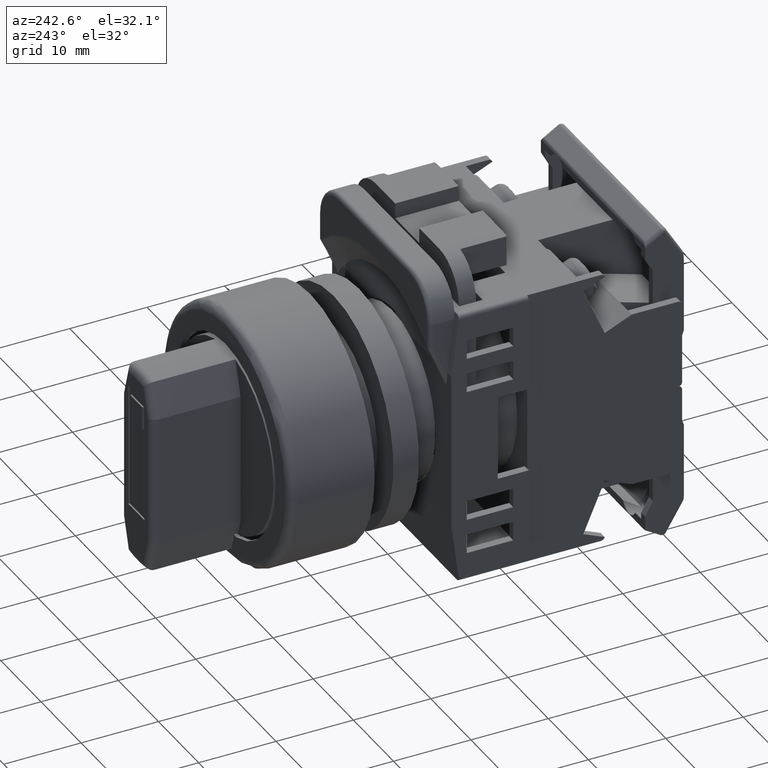
[diagram: clean part render]
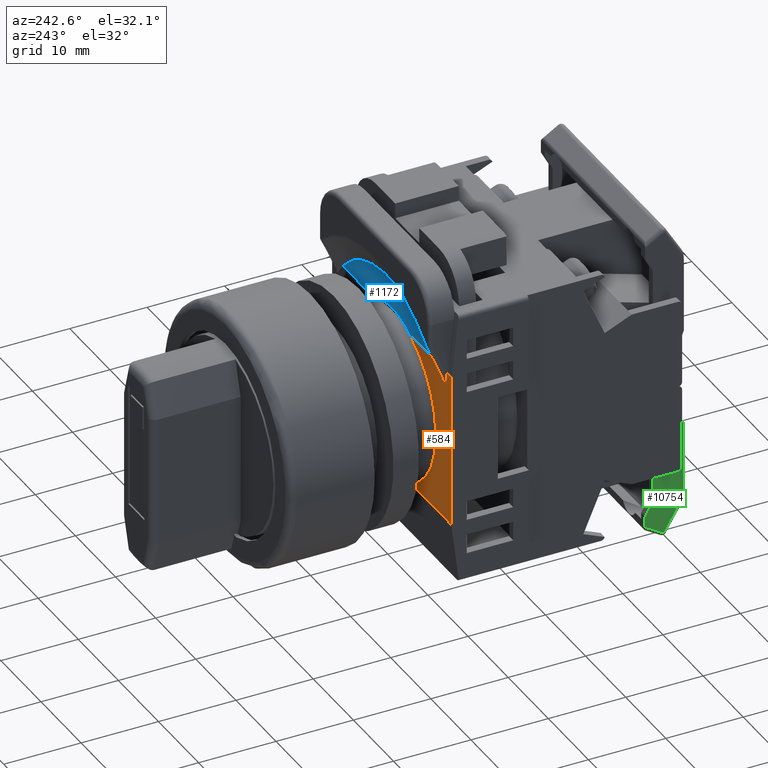
[diagram: same view with three faces highlighted in distinct colors, each labeled with its STEP entity id]
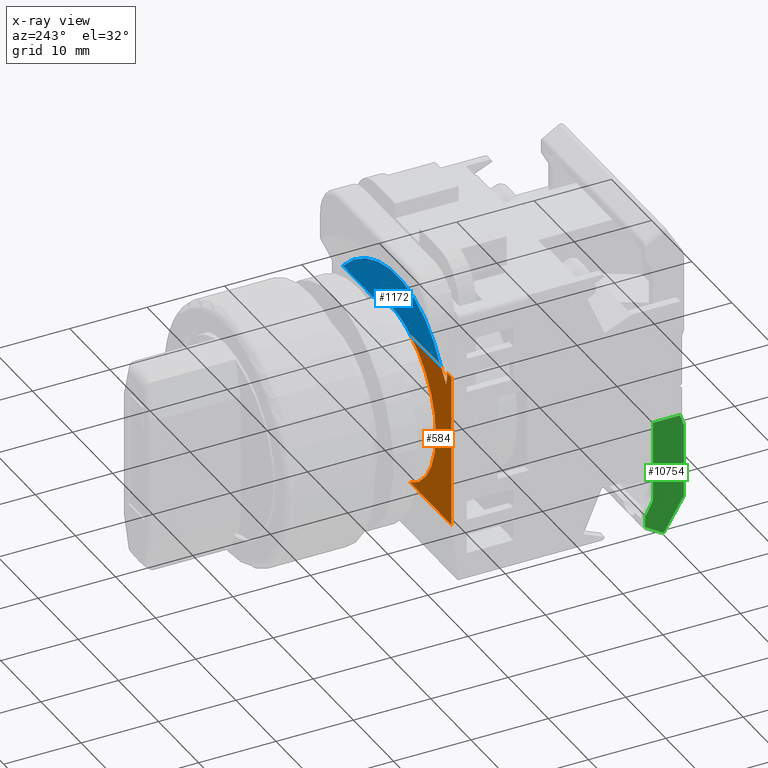
[diagram: x-ray of the same camera — body ghosted, the three highlighted faces saturated]
A machine part, auxiliary view with three faces highlighted in distinct colors.
The next image is the same camera in x-ray (body ghosted, the three faces saturated) — at least one of them is partly hidden behind the body in this view.
Their STEP definitions:

[orange] entity #584 — the highlighted planar face has unit normal (0, -1, 0).
#93 = VERTEX_POINT ( 'NONE', #4858 ) ;
#151 = VERTEX_POINT ( 'NONE', #5052 ) ;
#228 = EDGE_CURVE ( 'NONE', #7400, #9256, #6697, .T. ) ;
#419 = DIRECTION ( 'NONE',  ( 0.0000000000000000000, 1.000000000000000000, 0.0000000000000000000 ) ) ;
#488 = EDGE_CURVE ( 'NONE', #151, #93, #2497, .T. ) ;
#584 = ADVANCED_FACE ( 'NONE', ( #14210 ), #5847, .F. ) ;
#706 = VERTEX_POINT ( 'NONE', #2409 ) ;
#809 = LINE ( 'NONE', #8277, #10683 ) ;
#918 = ORIENTED_EDGE ( 'NONE', *, *, #12319, .T. ) ;
#1758 = EDGE_CURVE ( 'NONE', #151, #5713, #14818, .T. ) ;
#1983 = AXIS2_PLACEMENT_3D ( 'NONE', #8450, #419, #9780 ) ;
#2110 = CARTESIAN_POINT ( 'NONE',  ( -14.85000000000000000, -10.50000000000000000, 10.00000000000000000 ) ) ;
#2409 = CARTESIAN_POINT ( 'NONE',  ( -14.85000000000000000, -10.50000000000000000, -10.00000000000000000 ) ) ;
#2496 = ORIENTED_EDGE ( 'NONE', *, *, #228, .T. ) ;
#2497 = LINE ( 'NONE', #14978, #16300 ) ;
#2514 = VECTOR ( 'NONE', #14181, 1000.000000000000000 ) ;
#2630 = CARTESIAN_POINT ( 'NONE',  ( -14.85000000000000000, -10.50000000000000000, 10.00000000000000000 ) ) ;
#2839 = CARTESIAN_POINT ( 'NONE',  ( -13.80000000000000100, -10.50000000000000200, 9.525480374085647700 ) ) ;
#2916 = LINE ( 'NONE', #2110, #2514 ) ;
#3142 = CARTESIAN_POINT ( 'NONE',  ( 14.85000000000000000, -10.50000000000000000, 10.00000000000000000 ) ) ;
#4061 = EDGE_LOOP ( 'NONE', ( #15603, #13423, #12171, #2496, #15980, #918, #16176, #16157 ) ) ;
#4217 = CARTESIAN_POINT ( 'NONE',  ( -13.79999999999994200, -10.50000000000000500, 9.319954440554726100 ) ) ;
#4261 = CARTESIAN_POINT ( 'NONE',  ( -13.54853451232076500, -10.50000000000000200, 8.337695364723728600 ) ) ;
#4643 = B_SPLINE_CURVE_WITH_KNOTS ( 'NONE', 3,
 ( #2839, #4217, #13547, #5553, #14921, #6882, #16245, #8244 ),
 .UNSPECIFIED., .F., .F.,
 ( 4, 2, 2, 4 ),
 ( 0.0000000000000000000, 0.0006088593145239035600, 0.0009132889717858552900, 0.001217718629047807100 ),
 .UNSPECIFIED. ) ;
#4858 = CARTESIAN_POINT ( 'NONE',  ( -13.80000000000000100, -10.50000000000000200, 9.525480374085647700 ) ) ;
#5052 = CARTESIAN_POINT ( 'NONE',  ( -13.80000000000000100, -10.50000000000000000, 10.00000000000000000 ) ) ;
#5322 = VERTEX_POINT ( 'NONE', #9081 ) ;
#5478 = VERTEX_POINT ( 'NONE', #10164 ) ;
#5523 = EDGE_CURVE ( 'NONE', #5478, #7400, #7912, .T. ) ;
#5553 = CARTESIAN_POINT ( 'NONE',  ( -13.72866399005898200, -10.50000000000000000, 8.817534320932630000 ) ) ;
#5713 = VERTEX_POINT ( 'NONE', #2630 ) ;
#5847 = PLANE ( 'NONE',  #11404 ) ;
#6697 = LINE ( 'NONE', #9143, #13397 ) ;
#6882 = CARTESIAN_POINT ( 'NONE',  ( -13.64252078450904500, -10.50000000000000000, 8.523005332478463800 ) ) ;
#6930 = CARTESIAN_POINT ( 'NONE',  ( -12.21689404063083000, -10.50000000000000000, 9.999999999999955600 ) ) ;
#7039 = EDGE_CURVE ( 'NONE', #706, #5713, #2916, .T. ) ;
#7187 = DIRECTION ( 'NONE',  ( 0.0000000000000000000, -1.000000000000000000, 0.0000000000000000000 ) ) ;
#7362 = CIRCLE ( 'NONE', #1983, 11.00000000000000000 ) ;
#7400 = VERTEX_POINT ( 'NONE', #14367 ) ;
#7826 = DIRECTION ( 'NONE',  ( 1.000000000000000000, 0.0000000000000000000, -0.0000000000000000000 ) ) ;
#7912 =( BOUNDED_CURVE ( )  B_SPLINE_CURVE ( 3, ( #4261, #12251, #14963, #6930 ),
 .UNSPECIFIED., .F., .F. ) 
 B_SPLINE_CURVE_WITH_KNOTS ( ( 4, 4 ),
 ( 5.327643031488809900, 5.455505857335010600 ),
 .UNSPECIFIED. ) 
 CURVE ( )  GEOMETRIC_REPRESENTATION_ITEM ( )  RATIONAL_B_SPLINE_CURVE ( ( 1.000000000000000000, 0.9986380554565790200, 0.9986380554565790200, 1.000000000000000000 ) ) 
 REPRESENTATION_ITEM ( '' )  );
#8233 = DIRECTION ( 'NONE',  ( -1.000000000000000000, -0.0000000000000000000, -0.0000000000000000000 ) ) ;
#8244 = CARTESIAN_POINT ( 'NONE',  ( -13.54853451232076500, -10.50000000000000200, 8.337695364723728600 ) ) ;
#8277 = CARTESIAN_POINT ( 'NONE',  ( 14.85000000000000000, -10.50000000000000000, -10.00000000000000000 ) ) ;
#8450 = CARTESIAN_POINT ( 'NONE',  ( 0.0000000000000000000, -10.50000000000000000, 0.0000000000000000000 ) ) ;
#9081 = CARTESIAN_POINT ( 'NONE',  ( -4.582575694955838100, -10.50000000000000000, -10.00000000000000000 ) ) ;
#9143 = CARTESIAN_POINT ( 'NONE',  ( 0.0000000000000000000, -10.50000000000000000, 9.999999999999953800 ) ) ;
#9256 = VERTEX_POINT ( 'NONE', #14312 ) ;
#9780 = DIRECTION ( 'NONE',  ( 0.0000000000000000000, 0.0000000000000000000, 1.000000000000000000 ) ) ;
#10162 = CARTESIAN_POINT ( 'NONE',  ( 14.85000000000000000, -10.50000000000000000, 10.00000000000000000 ) ) ;
#10164 = CARTESIAN_POINT ( 'NONE',  ( -13.54853451232076500, -10.50000000000000200, 8.337695364723728600 ) ) ;
#10683 = VECTOR ( 'NONE', #8233, 1000.000000000000000 ) ;
#11238 = VECTOR ( 'NONE', #12853, 1000.000000000000000 ) ;
#11404 = AXIS2_PLACEMENT_3D ( 'NONE', #3142, #7187, #16552 ) ;
#11693 = EDGE_CURVE ( 'NONE', #93, #5478, #4643, .T. ) ;
#12171 = ORIENTED_EDGE ( 'NONE', *, *, #5523, .T. ) ;
#12251 = CARTESIAN_POINT ( 'NONE',  ( -13.14013194596774000, -10.50000000000000200, 8.920037294799074700 ) ) ;
#12319 = EDGE_CURVE ( 'NONE', #5322, #706, #809, .T. ) ;
#12853 = DIRECTION ( 'NONE',  ( -1.000000000000000000, -0.0000000000000000000, -0.0000000000000000000 ) ) ;
#13397 = VECTOR ( 'NONE', #7826, 1000.000000000000000 ) ;
#13423 = ORIENTED_EDGE ( 'NONE', *, *, #11693, .T. ) ;
#13547 = CARTESIAN_POINT ( 'NONE',  ( -13.78351834682081600, -10.50000000000000000, 9.117061170776102200 ) ) ;
#14181 = DIRECTION ( 'NONE',  ( -0.0000000000000000000, -0.0000000000000000000, 1.000000000000000000 ) ) ;
#14210 = FACE_OUTER_BOUND ( 'NONE', #4061, .T. ) ;
#14312 = CARTESIAN_POINT ( 'NONE',  ( -4.582575694955940200, -10.50000000000000000, 9.999999999999953800 ) ) ;
#14367 = CARTESIAN_POINT ( 'NONE',  ( -12.21689404063083000, -10.50000000000000000, 9.999999999999955600 ) ) ;
#14818 = LINE ( 'NONE', #10162, #11238 ) ;
#14921 = CARTESIAN_POINT ( 'NONE',  ( -13.70530151279067400, -10.50000000000000000, 8.718503112529017300 ) ) ;
#14963 = CARTESIAN_POINT ( 'NONE',  ( -12.69564642410663100, -10.50000000000000200, 9.474894524667751800 ) ) ;
#14978 = CARTESIAN_POINT ( 'NONE',  ( -13.80000000000000100, -10.50000000000000200, 6.534950688428415900 ) ) ;
#15468 = EDGE_CURVE ( 'NONE', #5322, #9256, #7362, .T. ) ;
#15603 = ORIENTED_EDGE ( 'NONE', *, *, #488, .T. ) ;
#15980 = ORIENTED_EDGE ( 'NONE', *, *, #15468, .F. ) ;
#16157 = ORIENTED_EDGE ( 'NONE', *, *, #1758, .F. ) ;
#16176 = ORIENTED_EDGE ( 'NONE', *, *, #7039, .T. ) ;
#16245 = CARTESIAN_POINT ( 'NONE',  ( -13.60368212947631700, -10.50000000000000000, 8.425869327908721100 ) ) ;
#16300 = VECTOR ( 'NONE', #16305, 1000.000000000000000 ) ;
#16305 = DIRECTION ( 'NONE',  ( 0.0000000000000000000, 0.0000000000000000000, -1.000000000000000000 ) ) ;
#16552 = DIRECTION ( 'NONE',  ( 0.0000000000000000000, -0.0000000000000000000, -1.000000000000000000 ) ) ;

[blue] entity #1172 — the highlighted planar face has unit normal (0, 0.9923, 0.124).
#228 = EDGE_CURVE ( 'NONE', #7400, #9256, #6697, .T. ) ;
#1129 = CARTESIAN_POINT ( 'NONE',  ( -1.587809417128124300, -10.62500000000000000, 11.00000000000000400 ) ) ;
#1172 = ADVANCED_FACE ( 'NONE', ( #6684 ), #2014, .T. ) ;
#1796 = ORIENTED_EDGE ( 'NONE', *, *, #3571, .T. ) ;
#1954 = ORIENTED_EDGE ( 'NONE', *, *, #7733, .T. ) ;
#2014 = PLANE ( 'NONE',  #8627 ) ;
#2193 = ORIENTED_EDGE ( 'NONE', *, *, #2601, .F. ) ;
#2601 = EDGE_CURVE ( 'NONE', #15752, #13619, #13315, .T. ) ;
#2993 = AXIS2_PLACEMENT_3D ( 'NONE', #3793, #13144, #5138 ) ;
#3392 = DIRECTION ( 'NONE',  ( 0.0000000000000000000, -0.1240347345892090800, 0.9922778767136675200 ) ) ;
#3571 = EDGE_CURVE ( 'NONE', #7400, #13619, #12648, .T. ) ;
#3793 = CARTESIAN_POINT ( 'NONE',  ( 0.0000000000000000000, -9.107692307692305500, -1.138461538461544200 ) ) ;
#3848 = CARTESIAN_POINT ( 'NONE',  ( -3.139112588475828000, -10.58268473685401300, 10.66147789483209400 ) ) ;
#4746 = CARTESIAN_POINT ( 'NONE',  ( 0.0000000000000000000, -10.62500000000000200, 11.00000000000000000 ) ) ;
#5138 = DIRECTION ( 'NONE',  ( 0.0000000000000000000, -0.1240347345892091300, 0.9922778767136675200 ) ) ;
#6127 = EDGE_LOOP ( 'NONE', ( #1954, #13066, #10899, #1796, #2193 ) ) ;
#6167 = VECTOR ( 'NONE', #17097, 1000.000000000000000 ) ;
#6684 = FACE_OUTER_BOUND ( 'NONE', #6127, .T. ) ;
#6697 = LINE ( 'NONE', #9143, #13397 ) ;
#7400 = VERTEX_POINT ( 'NONE', #14367 ) ;
#7733 = EDGE_CURVE ( 'NONE', #15752, #9316, #14430, .T. ) ;
#7826 = DIRECTION ( 'NONE',  ( 1.000000000000000000, 0.0000000000000000000, -0.0000000000000000000 ) ) ;
#7987 = CARTESIAN_POINT ( 'NONE',  ( 12.21689404063083000, -10.50000000000000000, 9.999999999999955600 ) ) ;
#8374 = CARTESIAN_POINT ( 'NONE',  ( 0.0000000000000000000, -10.62500000000000200, 11.00000000000000000 ) ) ;
#8500 =( BOUNDED_CURVE ( )  B_SPLINE_CURVE ( 3, ( #10513, #1129, #3848, #13196 ),
 .UNSPECIFIED., .F., .F. ) 
 B_SPLINE_CURVE_WITH_KNOTS ( ( 4, 4 ),
 ( 3.141592653589793100, 3.571292319741227400 ),
 .UNSPECIFIED. ) 
 CURVE ( )  GEOMETRIC_REPRESENTATION_ITEM ( )  RATIONAL_B_SPLINE_CURVE ( ( 1.000000000000000000, 0.9846722806122622000, 0.9846722806122622000, 1.000000000000000000 ) ) 
 REPRESENTATION_ITEM ( '' )  );
#8627 = AXIS2_PLACEMENT_3D ( 'NONE', #8701, #11394, #3392 ) ;
#8701 = CARTESIAN_POINT ( 'NONE',  ( 0.0000000000000000000, -9.107692307692305500, -1.138461538461544200 ) ) ;
#9143 = CARTESIAN_POINT ( 'NONE',  ( 0.0000000000000000000, -10.50000000000000000, 9.999999999999953800 ) ) ;
#9256 = VERTEX_POINT ( 'NONE', #14312 ) ;
#9316 = VERTEX_POINT ( 'NONE', #8374 ) ;
#10191 = EDGE_CURVE ( 'NONE', #9316, #9256, #8500, .T. ) ;
#10513 = CARTESIAN_POINT ( 'NONE',  ( 0.0000000000000000000, -10.62500000000000200, 11.00000000000000000 ) ) ;
#10899 = ORIENTED_EDGE ( 'NONE', *, *, #228, .F. ) ;
#11394 = DIRECTION ( 'NONE',  ( 0.0000000000000000000, 0.9922778767136676300, 0.1240347345892090900 ) ) ;
#11416 = CARTESIAN_POINT ( 'NONE',  ( 1.587809417128127000, -10.62500000000000000, 11.00000000000000400 ) ) ;
#12648 = CIRCLE ( 'NONE', #2993, 16.59085127875740900 ) ;
#12763 = CARTESIAN_POINT ( 'NONE',  ( 4.582575694955940200, -10.50000000000000000, 9.999999999999953800 ) ) ;
#13066 = ORIENTED_EDGE ( 'NONE', *, *, #10191, .T. ) ;
#13144 = DIRECTION ( 'NONE',  ( 0.0000000000000000000, 0.9922778767136676300, 0.1240347345892090900 ) ) ;
#13196 = CARTESIAN_POINT ( 'NONE',  ( -4.582575694955940200, -10.50000000000000000, 9.999999999999953800 ) ) ;
#13315 = LINE ( 'NONE', #17035, #6167 ) ;
#13397 = VECTOR ( 'NONE', #7826, 1000.000000000000000 ) ;
#13619 = VERTEX_POINT ( 'NONE', #7987 ) ;
#14312 = CARTESIAN_POINT ( 'NONE',  ( -4.582575694955940200, -10.50000000000000000, 9.999999999999953800 ) ) ;
#14367 = CARTESIAN_POINT ( 'NONE',  ( -12.21689404063083000, -10.50000000000000000, 9.999999999999955600 ) ) ;
#14430 =( BOUNDED_CURVE ( )  B_SPLINE_CURVE ( 3, ( #12763, #16738, #11416, #4746 ),
 .UNSPECIFIED., .F., .F. ) 
 B_SPLINE_CURVE_WITH_KNOTS ( ( 4, 4 ),
 ( 2.711892987438358800, 3.141592653589793100 ),
 .UNSPECIFIED. ) 
 CURVE ( )  GEOMETRIC_REPRESENTATION_ITEM ( )  RATIONAL_B_SPLINE_CURVE ( ( 1.000000000000000000, 0.9846722806122622000, 0.9846722806122622000, 1.000000000000000000 ) ) 
 REPRESENTATION_ITEM ( '' )  );
#15752 = VERTEX_POINT ( 'NONE', #17153 ) ;
#16738 = CARTESIAN_POINT ( 'NONE',  ( 3.139112588475831100, -10.58268473685401300, 10.66147789483209600 ) ) ;
#17035 = CARTESIAN_POINT ( 'NONE',  ( 0.0000000000000000000, -10.50000000000000000, 9.999999999999953800 ) ) ;
#17097 = DIRECTION ( 'NONE',  ( 1.000000000000000000, 0.0000000000000000000, -0.0000000000000000000 ) ) ;
#17153 = CARTESIAN_POINT ( 'NONE',  ( 4.582575694955940200, -10.50000000000000000, 9.999999999999953800 ) ) ;

[green] entity #10754 — the highlighted planar face has unit normal (1, 0, -0).
#12 = LINE ( 'NONE', #14304, #10256 ) ;
#549 = CARTESIAN_POINT ( 'NONE',  ( -13.00000000000000000, -41.49999999999998600, -16.03941769519668600 ) ) ;
#1290 = VERTEX_POINT ( 'NONE', #8046 ) ;
#1392 = CARTESIAN_POINT ( 'NONE',  ( -13.00000000000000000, -41.00000000000000700, -4.999999999999998200 ) ) ;
#2049 = CARTESIAN_POINT ( 'NONE',  ( -13.00000000000000000, -41.50000000000000700, -6.373738709727303900 ) ) ;
#2336 = EDGE_LOOP ( 'NONE', ( #6509, #14190, #7134, #9488, #10512, #6203, #7847, #8028 ) ) ;
#2591 = DIRECTION ( 'NONE',  ( 0.0000000000000000000, 1.000000000000000000, -2.478176394252579700E-016 ) ) ;
#3090 = CARTESIAN_POINT ( 'NONE',  ( -13.00000000000000000, -37.50000000000000700, -15.60000000000000000 ) ) ;
#3427 = CARTESIAN_POINT ( 'NONE',  ( -13.00000000000000000, -41.50000000000000700, -6.373738709727303900 ) ) ;
#3762 = LINE ( 'NONE', #7549, #10449 ) ;
#3786 = FACE_OUTER_BOUND ( 'NONE', #2336, .T. ) ;
#4187 = VECTOR ( 'NONE', #11432, 1000.000000000000000 ) ;
#4189 = VERTEX_POINT ( 'NONE', #1392 ) ;
#5410 = VECTOR ( 'NONE', #11436, 1000.000000000000000 ) ;
#5820 = LINE ( 'NONE', #3427, #5410 ) ;
#6140 = EDGE_CURVE ( 'NONE', #9584, #6769, #6605, .T. ) ;
#6203 = ORIENTED_EDGE ( 'NONE', *, *, #11199, .T. ) ;
#6255 = VERTEX_POINT ( 'NONE', #7169 ) ;
#6283 = DIRECTION ( 'NONE',  ( -0.0000000000000000000, 0.5205176042696088000, -0.8538509376029442800 ) ) ;
#6509 = ORIENTED_EDGE ( 'NONE', *, *, #16546, .T. ) ;
#6605 = LINE ( 'NONE', #9178, #8451 ) ;
#6769 = VERTEX_POINT ( 'NONE', #3090 ) ;
#6917 = VECTOR ( 'NONE', #2591, 1000.000000000000000 ) ;
#7134 = ORIENTED_EDGE ( 'NONE', *, *, #10224, .T. ) ;
#7169 = CARTESIAN_POINT ( 'NONE',  ( -13.00000000000000000, -38.89488614614215600, -20.31281572906372500 ) ) ;
#7506 = CARTESIAN_POINT ( 'NONE',  ( -13.00000000000000000, 0.0000000000000000000, 0.0000000000000000000 ) ) ;
#7549 = CARTESIAN_POINT ( 'NONE',  ( -13.00000000000000000, -1.510206978102853800, 2.477325711273589800 ) ) ;
#7847 = ORIENTED_EDGE ( 'NONE', *, *, #8187, .F. ) ;
#7863 = DIRECTION ( 'NONE',  ( 0.0000000000000000000, 0.0000000000000000000, -1.000000000000000000 ) ) ;
#8028 = ORIENTED_EDGE ( 'NONE', *, *, #13458, .F. ) ;
#8046 = CARTESIAN_POINT ( 'NONE',  ( -13.00000000000000000, -36.49999999999998600, -17.43844718719117600 ) ) ;
#8187 = EDGE_CURVE ( 'NONE', #6255, #15125, #3762, .T. ) ;
#8451 = VECTOR ( 'NONE', #7863, 1000.000000000000000 ) ;
#8514 = EDGE_CURVE ( 'NONE', #8870, #4189, #5820, .T. ) ;
#8858 = DIRECTION ( 'NONE',  ( 0.0000000000000000000, 0.0000000000000000000, 1.000000000000000000 ) ) ;
#8870 = VERTEX_POINT ( 'NONE', #11254 ) ;
#8886 = DIRECTION ( 'NONE',  ( -0.0000000000000000000, 0.8538509376029447300, 0.5205176042696079100 ) ) ;
#9059 = CARTESIAN_POINT ( 'NONE',  ( -13.00000000000000000, -36.49999999999998600, -17.43844718719117600 ) ) ;
#9178 = CARTESIAN_POINT ( 'NONE',  ( -13.00000000000000000, -37.50000000000000700, -15.60000000000000000 ) ) ;
#9211 = VECTOR ( 'NONE', #10392, 1000.000000000000000 ) ;
#9488 = ORIENTED_EDGE ( 'NONE', *, *, #6140, .T. ) ;
#9534 = AXIS2_PLACEMENT_3D ( 'NONE', #7506, #16847, #8858 ) ;
#9584 = VERTEX_POINT ( 'NONE', #15767 ) ;
#9608 = LINE ( 'NONE', #9059, #9211 ) ;
#9774 = VECTOR ( 'NONE', #12342, 1000.000000000000000 ) ;
#10054 = LINE ( 'NONE', #10622, #6917 ) ;
#10144 = PLANE ( 'NONE',  #9534 ) ;
#10224 = EDGE_CURVE ( 'NONE', #4189, #9584, #10054, .T. ) ;
#10256 = VECTOR ( 'NONE', #6283, 1000.000000000000100 ) ;
#10392 = DIRECTION ( 'NONE',  ( 0.0000000000000000000, 0.4778245885015954800, -0.8784552707015201900 ) ) ;
#10449 = VECTOR ( 'NONE', #8886, 1000.000000000000100 ) ;
#10512 = ORIENTED_EDGE ( 'NONE', *, *, #16693, .T. ) ;
#10622 = CARTESIAN_POINT ( 'NONE',  ( -13.00000000000000000, -41.00000000000000700, -4.999999999999998200 ) ) ;
#10754 = ADVANCED_FACE ( 'NONE', ( #3786 ), #10144, .F. ) ;
#11199 = EDGE_CURVE ( 'NONE', #1290, #15125, #17314, .T. ) ;
#11254 = CARTESIAN_POINT ( 'NONE',  ( -13.00000000000000000, -41.50000000000000700, -6.373738709727303900 ) ) ;
#11432 = DIRECTION ( 'NONE',  ( -0.0000000000000000000, -1.958984551864664900E-015, 1.000000000000000000 ) ) ;
#11436 = DIRECTION ( 'NONE',  ( 0.0000000000000000000, 0.3420201433256702100, 0.9396926207859078700 ) ) ;
#11561 = CARTESIAN_POINT ( 'NONE',  ( -13.00000000000000000, -36.49999999999999300, -18.85286488238786600 ) ) ;
#12342 = DIRECTION ( 'NONE',  ( 0.0000000000000000000, -3.469446951953616900E-015, -1.000000000000000000 ) ) ;
#13458 = EDGE_CURVE ( 'NONE', #15548, #6255, #12, .T. ) ;
#14190 = ORIENTED_EDGE ( 'NONE', *, *, #8514, .T. ) ;
#14304 = CARTESIAN_POINT ( 'NONE',  ( -13.00000000000000000, -37.38467916803928400, -22.79014144033735400 ) ) ;
#14857 = LINE ( 'NONE', #2049, #4187 ) ;
#15125 = VERTEX_POINT ( 'NONE', #11561 ) ;
#15548 = VERTEX_POINT ( 'NONE', #549 ) ;
#15767 = CARTESIAN_POINT ( 'NONE',  ( -13.00000000000000000, -37.50000000000000700, -4.999999999999999100 ) ) ;
#16263 = CARTESIAN_POINT ( 'NONE',  ( -13.00000000000000000, -36.49999999999999300, -19.43844718719117300 ) ) ;
#16546 = EDGE_CURVE ( 'NONE', #15548, #8870, #14857, .T. ) ;
#16693 = EDGE_CURVE ( 'NONE', #6769, #1290, #9608, .T. ) ;
#16847 = DIRECTION ( 'NONE',  ( 1.000000000000000000, 0.0000000000000000000, -0.0000000000000000000 ) ) ;
#17314 = LINE ( 'NONE', #16263, #9774 ) ;